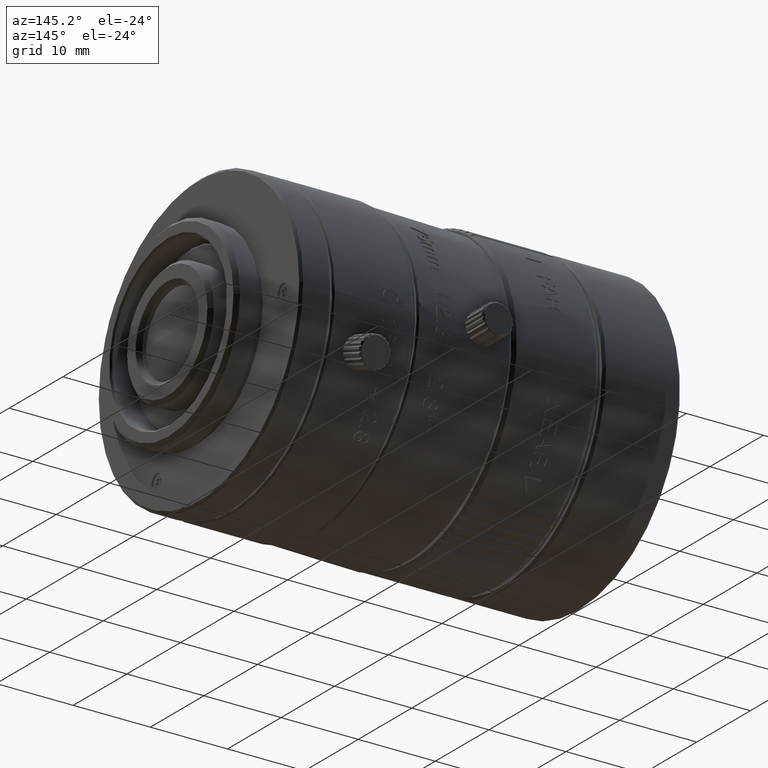
[diagram: clean part render]
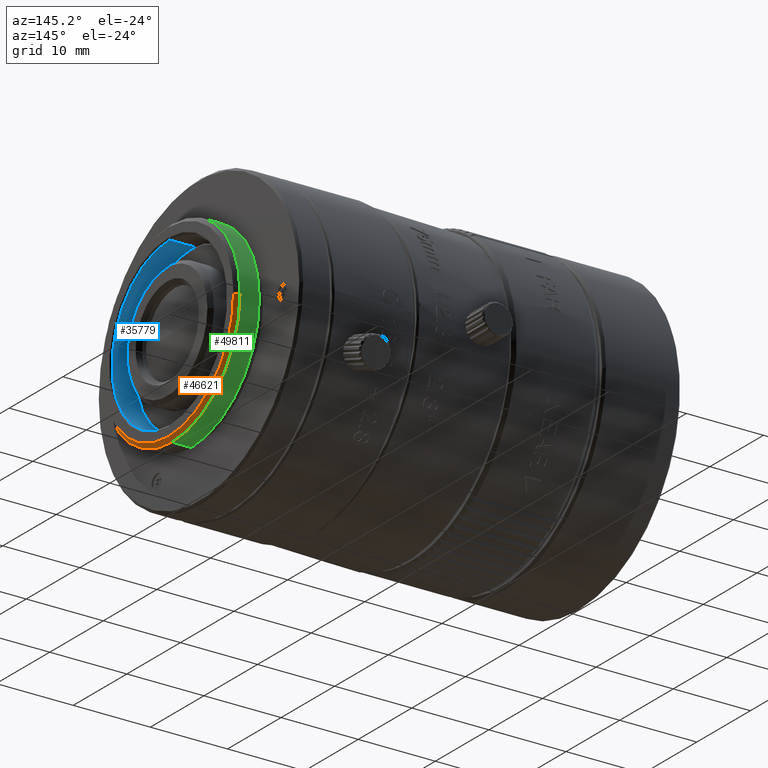
[diagram: same view with three faces highlighted in distinct colors, each labeled with its STEP entity id]
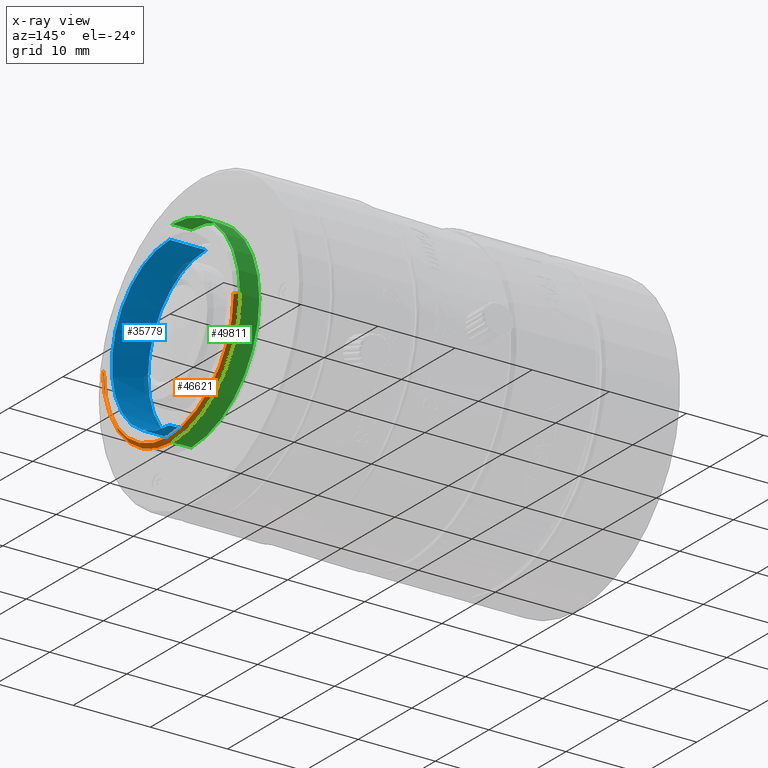
[diagram: x-ray of the same camera — body ghosted, the three highlighted faces saturated]
A machine part, auxiliary view with three faces highlighted in distinct colors.
The next image is the same camera in x-ray (body ghosted, the three faces saturated) — at least one of them is partly hidden behind the body in this view.
Their STEP definitions:

[orange] entity #46621 — the highlighted conical surface has half-angle 45 deg.
#1034 = VERTEX_POINT ( 'NONE', #50143 ) ;
#3081 = VERTEX_POINT ( 'NONE', #52736 ) ;
#3106 = VERTEX_POINT ( 'NONE', #40139 ) ;
#6656 = AXIS2_PLACEMENT_3D ( 'NONE', #27872, #49707, #32647 ) ;
#12003 = ORIENTED_EDGE ( 'NONE', *, *, #16805, .F. ) ;
#15309 = LINE ( 'NONE', #54278, #39010 ) ;
#16325 = CARTESIAN_POINT ( 'NONE',  ( 31.10667233491064820, 31.50004786563800963, -18.90000000000000213 ) ) ;
#16805 = EDGE_CURVE ( 'NONE', #3106, #3081, #33353, .T. ) ;
#17277 = CIRCLE ( 'NONE', #6656, 12.69999999999800089 ) ;
#17415 = CIRCLE ( 'NONE', #55034, 12.20000544508100404 ) ;
#17758 = DIRECTION ( 'NONE',  ( -1.000000000000000000, -1.365923996832346081E-16, -0.000000000000000000 ) ) ;
#18852 = DIRECTION ( 'NONE',  ( 0.000000000000000000, -1.000000000000000000, 0.000000000000000000 ) ) ;
#19245 = EDGE_CURVE ( 'NONE', #21422, #55279, #17415, .T. ) ;
#19896 = EDGE_LOOP ( 'NONE', ( #37580, #39289, #52916, #28570, #12003 ) ) ;
#21149 = EDGE_CURVE ( 'NONE', #55279, #1034, #15309, .T. ) ;
#21422 = VERTEX_POINT ( 'NONE', #51451 ) ;
#23667 = FACE_OUTER_BOUND ( 'NONE', #19896, .T. ) ;
#27792 = VECTOR ( 'NONE', #28698, 1000.000000000000000 ) ;
#27872 = CARTESIAN_POINT ( 'NONE',  ( 31.10667233491065176, 18.80004786563999986, -18.90000000000000213 ) ) ;
#28425 = DIRECTION ( 'NONE',  ( 0.000000000000000000, -1.000000000000000000, 0.000000000000000000 ) ) ;
#28570 = ORIENTED_EDGE ( 'NONE', *, *, #34642, .F. ) ;
#28698 = DIRECTION ( 'NONE',  ( -0.7071066233884897301, 0.7071069389845701103, 8.659562494823366882E-17 ) ) ;
#28782 = DIRECTION ( 'NONE',  ( -0.7071066233884895080, -0.7071069389845703324, 0.000000000000000000 ) ) ;
#29979 = CARTESIAN_POINT ( 'NONE',  ( 31.10667233491065176, 18.80004786563999986, -18.90000000000000213 ) ) ;
#30974 = CARTESIAN_POINT ( 'NONE',  ( 31.60666666667000158, 18.80004786563999986, -18.90000000000000213 ) ) ;
#32077 = DIRECTION ( 'NONE',  ( -1.000000000000000000, -1.365923996832346081E-16, -0.000000000000000000 ) ) ;
#32647 = DIRECTION ( 'NONE',  ( 0.000000000000000000, 0.000000000000000000, -1.000000000000000000 ) ) ;
#33353 = CIRCLE ( 'NONE', #43245, 12.69999999999800089 ) ;
#33627 = DIRECTION ( 'NONE',  ( 0.000000000000000000, 0.000000000000000000, -1.000000000000000000 ) ) ;
#34642 = EDGE_CURVE ( 'NONE', #3081, #1034, #17277, .T. ) ;
#36543 = CARTESIAN_POINT ( 'NONE',  ( 31.10667233491064820, 18.80004786563999986, -18.90000000000000213 ) ) ;
#37580 = ORIENTED_EDGE ( 'NONE', *, *, #43886, .F. ) ;
#39010 = VECTOR ( 'NONE', #28782, 1000.000000000000000 ) ;
#39289 = ORIENTED_EDGE ( 'NONE', *, *, #19245, .T. ) ;
#40139 = CARTESIAN_POINT ( 'NONE',  ( 31.10667233491065176, 31.50004786563800963, -18.90000000000000213 ) ) ;
#40298 = CARTESIAN_POINT ( 'NONE',  ( 31.60666666667000158, 6.600042420558997591, -18.90000000000000213 ) ) ;
#43245 = AXIS2_PLACEMENT_3D ( 'NONE', #29979, #54902, #33627 ) ;
#43886 = EDGE_CURVE ( 'NONE', #21422, #3106, #46071, .T. ) ;
#46071 = LINE ( 'NONE', #16325, #27792 ) ;
#46621 = ADVANCED_FACE ( 'NONE', ( #23667 ), #50278, .T. ) ;
#46738 = AXIS2_PLACEMENT_3D ( 'NONE', #36543, #32077, #28425 ) ;
#49707 = DIRECTION ( 'NONE',  ( -1.000000000000000000, 0.000000000000000000, -0.000000000000000000 ) ) ;
#50143 = CARTESIAN_POINT ( 'NONE',  ( 31.10667233491065176, 6.100047865641998079, -18.90000000000000213 ) ) ;
#50278 = CONICAL_SURFACE ( 'NONE', #46738, 12.69999999999800622, 0.7853983865575769885 ) ;
#51451 = CARTESIAN_POINT ( 'NONE',  ( 31.60666666667000158, 31.00005331072100390, -18.90000000000000213 ) ) ;
#52736 = CARTESIAN_POINT ( 'NONE',  ( 31.10667233491065176, 18.80004786563999986, -31.59999999999800480 ) ) ;
#52916 = ORIENTED_EDGE ( 'NONE', *, *, #21149, .T. ) ;
#54278 = CARTESIAN_POINT ( 'NONE',  ( 31.10667233491064820, 6.100047865641994527, -18.90000000000000213 ) ) ;
#54902 = DIRECTION ( 'NONE',  ( -1.000000000000000000, 0.000000000000000000, -0.000000000000000000 ) ) ;
#55034 = AXIS2_PLACEMENT_3D ( 'NONE', #30974, #17758, #18852 ) ;
#55279 = VERTEX_POINT ( 'NONE', #40298 ) ;

[blue] entity #35779 — the highlighted cylindrical surface (partial cylindrical patch) has radius 10.8 mm, axis along (1, -0, -0).
#316 = AXIS2_PLACEMENT_3D ( 'NONE', #7671, #41872, #55309 ) ;
#931 = EDGE_CURVE ( 'NONE', #47192, #17973, #30520, .T. ) ;
#1211 = VECTOR ( 'NONE', #35132, 1000.000000000000000 ) ;
#1969 = DIRECTION ( 'NONE',  ( 1.000000000000000000, 0.000000000000000000, -0.000000000000000000 ) ) ;
#2658 = ORIENTED_EDGE ( 'NONE', *, *, #48724, .T. ) ;
#5012 = CIRCLE ( 'NONE', #5924, 10.79999893342413664 ) ;
#5924 = AXIS2_PLACEMENT_3D ( 'NONE', #29361, #54832, #38041 ) ;
#6221 = CARTESIAN_POINT ( 'NONE',  ( 26.70666666666326705, 18.80004786563999986, -8.100000000002001599 ) ) ;
#6322 = AXIS2_PLACEMENT_3D ( 'NONE', #14575, #1969, #19066 ) ;
#6733 = CARTESIAN_POINT ( 'NONE',  ( 31.40666880170384800, 18.80004786563999986, -29.69999999999800622 ) ) ;
#7595 = VERTEX_POINT ( 'NONE', #54919 ) ;
#7671 = CARTESIAN_POINT ( 'NONE',  ( 26.70666666666326350, 18.80004786563999986, -18.90000000000000213 ) ) ;
#11025 = VERTEX_POINT ( 'NONE', #11631 ) ;
#11631 = CARTESIAN_POINT ( 'NONE',  ( 26.70666560066999651, 18.80004786563999986, -8.100001066575867270 ) ) ;
#11860 = FACE_OUTER_BOUND ( 'NONE', #33478, .T. ) ;
#14575 = CARTESIAN_POINT ( 'NONE',  ( 31.40666880170384800, 18.80004786563999986, -18.90000000000000213 ) ) ;
#14654 = EDGE_CURVE ( 'NONE', #30154, #7595, #20727, .T. ) ;
#16001 = VECTOR ( 'NONE', #51307, 1000.000000000000000 ) ;
#17973 = VERTEX_POINT ( 'NONE', #6733 ) ;
#19066 = DIRECTION ( 'NONE',  ( 0.000000000000000000, 0.000000000000000000, -1.000000000000000000 ) ) ;
#20727 = CIRCLE ( 'NONE', #33273, 10.79999893342413664 ) ;
#25616 = CARTESIAN_POINT ( 'NONE',  ( 26.70666560066999651, 18.80004786563999986, -18.90000000000000213 ) ) ;
#25826 = LINE ( 'NONE', #34517, #16001 ) ;
#25964 = EDGE_CURVE ( 'NONE', #30154, #17973, #25826, .T. ) ;
#29361 = CARTESIAN_POINT ( 'NONE',  ( 26.70666560066999651, 18.80004786563999986, -18.90000000000000213 ) ) ;
#30154 = VERTEX_POINT ( 'NONE', #34010 ) ;
#30520 = CIRCLE ( 'NONE', #6322, 10.79999999999800231 ) ;
#33273 = AXIS2_PLACEMENT_3D ( 'NONE', #25616, #34001, #34567 ) ;
#33478 = EDGE_LOOP ( 'NONE', ( #53556, #2658, #41210, #39751, #34801 ) ) ;
#34001 = DIRECTION ( 'NONE',  ( -1.000000000000000000, 0.000000000000000000, 0.000000000000000000 ) ) ;
#34010 = CARTESIAN_POINT ( 'NONE',  ( 26.70666560066999651, 18.80004786563999986, -29.69999893342414055 ) ) ;
#34517 = CARTESIAN_POINT ( 'NONE',  ( 26.70666666666325995, 18.80004786563999986, -29.69999999999800622 ) ) ;
#34567 = DIRECTION ( 'NONE',  ( 0.000000000000000000, 0.000000000000000000, 1.000000000000000000 ) ) ;
#34801 = ORIENTED_EDGE ( 'NONE', *, *, #14654, .T. ) ;
#35132 = DIRECTION ( 'NONE',  ( 1.000000000000000000, -5.159920332829509451E-32, -1.606225440719563422E-16 ) ) ;
#35779 = ADVANCED_FACE ( 'NONE', ( #11860 ), #54471, .F. ) ;
#38041 = DIRECTION ( 'NONE',  ( 0.000000000000000000, 0.000000000000000000, 1.000000000000000000 ) ) ;
#38080 = CARTESIAN_POINT ( 'NONE',  ( 31.40666880170384800, 18.80004786563999986, -8.100000000002001599 ) ) ;
#39751 = ORIENTED_EDGE ( 'NONE', *, *, #25964, .F. ) ;
#41210 = ORIENTED_EDGE ( 'NONE', *, *, #931, .T. ) ;
#41872 = DIRECTION ( 'NONE',  ( 1.000000000000000000, -5.159920332829509451E-32, -1.606225440719563176E-16 ) ) ;
#47192 = VERTEX_POINT ( 'NONE', #38080 ) ;
#48724 = EDGE_CURVE ( 'NONE', #11025, #47192, #53036, .T. ) ;
#51307 = DIRECTION ( 'NONE',  ( 1.000000000000000000, -5.159920332829509451E-32, -1.606225440719563422E-16 ) ) ;
#53036 = LINE ( 'NONE', #6221, #1211 ) ;
#53556 = ORIENTED_EDGE ( 'NONE', *, *, #55498, .T. ) ;
#54471 = CYLINDRICAL_SURFACE ( 'NONE', #316, 10.79999999999800231 ) ;
#54832 = DIRECTION ( 'NONE',  ( -1.000000000000000000, 0.000000000000000000, 0.000000000000000000 ) ) ;
#54919 = CARTESIAN_POINT ( 'NONE',  ( 26.70666560066999651, 8.000048932215864994, -18.90000000000000213 ) ) ;
#55309 = DIRECTION ( 'NONE',  ( -3.212450881439125858E-16, 0.000000000000000000, -1.000000000000000000 ) ) ;
#55498 = EDGE_CURVE ( 'NONE', #7595, #11025, #5012, .T. ) ;

[green] entity #49811 — the highlighted cylindrical surface (partial cylindrical patch) has radius 12.7 mm, axis along (1, -0, 0).
#3081 = VERTEX_POINT ( 'NONE', #52736 ) ;
#3106 = VERTEX_POINT ( 'NONE', #40139 ) ;
#3867 = ORIENTED_EDGE ( 'NONE', *, *, #34074, .F. ) ;
#10350 = ORIENTED_EDGE ( 'NONE', *, *, #20490, .T. ) ;
#12529 = LINE ( 'NONE', #22366, #42226 ) ;
#14470 = DIRECTION ( 'NONE',  ( 1.000000000000000000, -0.000000000000000000, 0.000000000000000000 ) ) ;
#16805 = EDGE_CURVE ( 'NONE', #3106, #3081, #33353, .T. ) ;
#17191 = AXIS2_PLACEMENT_3D ( 'NONE', #35680, #23634, #40727 ) ;
#18228 = CARTESIAN_POINT ( 'NONE',  ( 28.60666666667044922, 18.80004786563999986, -6.200000000002002132 ) ) ;
#20490 = EDGE_CURVE ( 'NONE', #36855, #25034, #51463, .T. ) ;
#20521 = DIRECTION ( 'NONE',  ( 1.000000000000000000, -0.000000000000000000, 0.000000000000000000 ) ) ;
#21020 = AXIS2_PLACEMENT_3D ( 'NONE', #21369, #30921, #22773 ) ;
#21369 = CARTESIAN_POINT ( 'NONE',  ( 28.60666666667044922, 18.80004786563999986, -18.90000000000000213 ) ) ;
#21424 = ORIENTED_EDGE ( 'NONE', *, *, #51642, .T. ) ;
#21887 = VECTOR ( 'NONE', #20521, 1000.000000000000000 ) ;
#22366 = CARTESIAN_POINT ( 'NONE',  ( 28.60666666667044922, 18.80004786563999986, -6.200000000002002132 ) ) ;
#22773 = DIRECTION ( 'NONE',  ( 0.000000000000000000, 0.000000000000000000, -1.000000000000000000 ) ) ;
#23634 = DIRECTION ( 'NONE',  ( 1.000000000000000000, -0.000000000000000000, 0.000000000000000000 ) ) ;
#24766 = LINE ( 'NONE', #42407, #21887 ) ;
#25034 = VERTEX_POINT ( 'NONE', #18228 ) ;
#25285 = DIRECTION ( 'NONE',  ( 0.000000000000000000, 0.000000000000000000, -1.000000000000000000 ) ) ;
#25421 = CIRCLE ( 'NONE', #29913, 12.69999999999800089 ) ;
#28655 = CARTESIAN_POINT ( 'NONE',  ( 31.10667233491065176, 18.80004786563999986, -18.90000000000000213 ) ) ;
#29740 = VERTEX_POINT ( 'NONE', #45111 ) ;
#29913 = AXIS2_PLACEMENT_3D ( 'NONE', #28655, #41262, #25285 ) ;
#29979 = CARTESIAN_POINT ( 'NONE',  ( 31.10667233491065176, 18.80004786563999986, -18.90000000000000213 ) ) ;
#30023 = EDGE_CURVE ( 'NONE', #25034, #29740, #12529, .T. ) ;
#30902 = ORIENTED_EDGE ( 'NONE', *, *, #30023, .T. ) ;
#30921 = DIRECTION ( 'NONE',  ( 1.000000000000000000, -0.000000000000000000, 0.000000000000000000 ) ) ;
#31500 = CYLINDRICAL_SURFACE ( 'NONE', #17191, 12.69999999999800089 ) ;
#33353 = CIRCLE ( 'NONE', #43245, 12.69999999999800089 ) ;
#33627 = DIRECTION ( 'NONE',  ( 0.000000000000000000, 0.000000000000000000, -1.000000000000000000 ) ) ;
#34074 = EDGE_CURVE ( 'NONE', #36855, #3081, #24766, .T. ) ;
#35680 = CARTESIAN_POINT ( 'NONE',  ( 28.60666666667044922, 18.80004786563999986, -18.90000000000000213 ) ) ;
#36855 = VERTEX_POINT ( 'NONE', #52762 ) ;
#40139 = CARTESIAN_POINT ( 'NONE',  ( 31.10667233491065176, 31.50004786563800963, -18.90000000000000213 ) ) ;
#40727 = DIRECTION ( 'NONE',  ( 0.000000000000000000, 0.000000000000000000, -1.000000000000000000 ) ) ;
#41262 = DIRECTION ( 'NONE',  ( -1.000000000000000000, 0.000000000000000000, -0.000000000000000000 ) ) ;
#42098 = ORIENTED_EDGE ( 'NONE', *, *, #16805, .T. ) ;
#42226 = VECTOR ( 'NONE', #14470, 1000.000000000000000 ) ;
#42407 = CARTESIAN_POINT ( 'NONE',  ( 28.60666666667044922, 18.80004786563999986, -31.59999999999800480 ) ) ;
#43245 = AXIS2_PLACEMENT_3D ( 'NONE', #29979, #54902, #33627 ) ;
#43284 = FACE_OUTER_BOUND ( 'NONE', #51047, .T. ) ;
#45111 = CARTESIAN_POINT ( 'NONE',  ( 31.10667233491065176, 18.80004786563999986, -6.200000000002002132 ) ) ;
#49811 = ADVANCED_FACE ( 'NONE', ( #43284 ), #31500, .T. ) ;
#51047 = EDGE_LOOP ( 'NONE', ( #10350, #30902, #21424, #42098, #3867 ) ) ;
#51463 = CIRCLE ( 'NONE', #21020, 12.69999999999800089 ) ;
#51642 = EDGE_CURVE ( 'NONE', #29740, #3106, #25421, .T. ) ;
#52736 = CARTESIAN_POINT ( 'NONE',  ( 31.10667233491065176, 18.80004786563999986, -31.59999999999800480 ) ) ;
#52762 = CARTESIAN_POINT ( 'NONE',  ( 28.60666666667044922, 18.80004786563999986, -31.59999999999800480 ) ) ;
#54902 = DIRECTION ( 'NONE',  ( -1.000000000000000000, 0.000000000000000000, -0.000000000000000000 ) ) ;